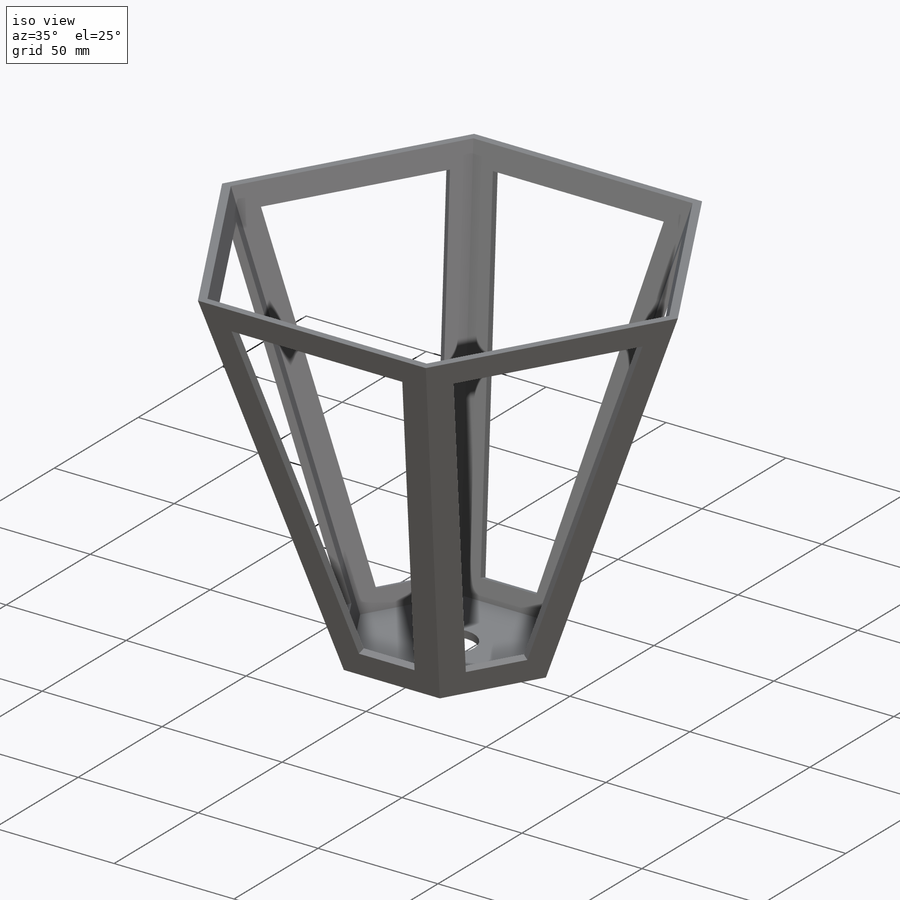
[diagram: iso view]
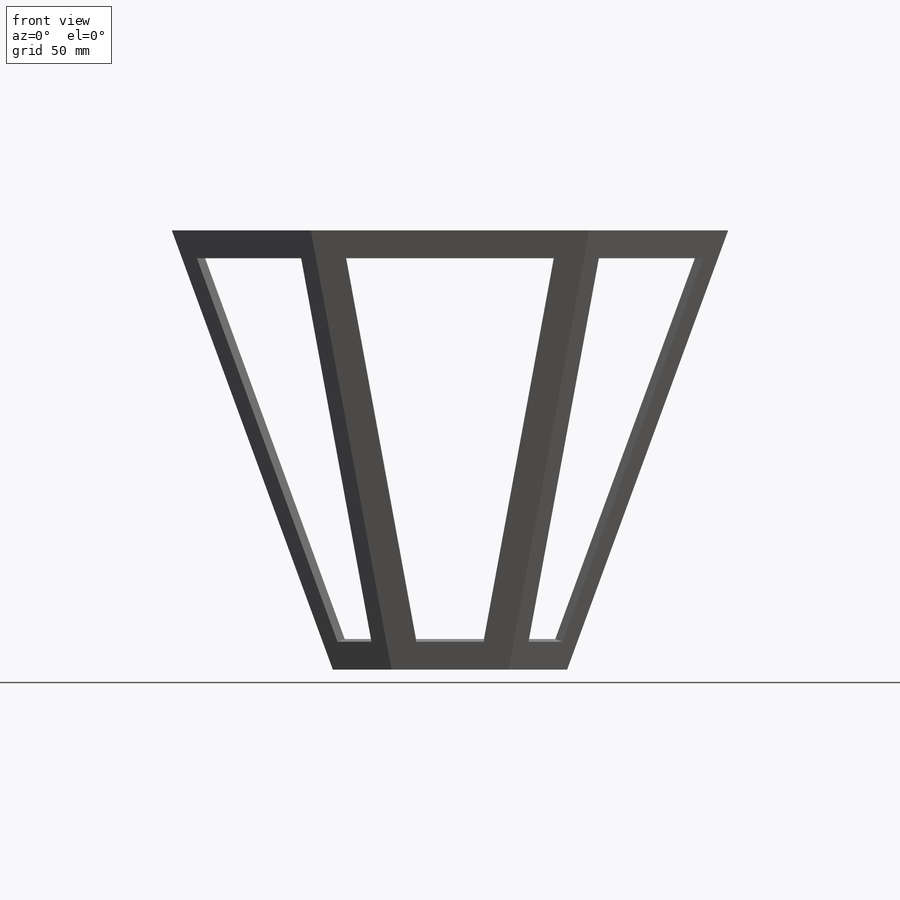
[diagram: front view]
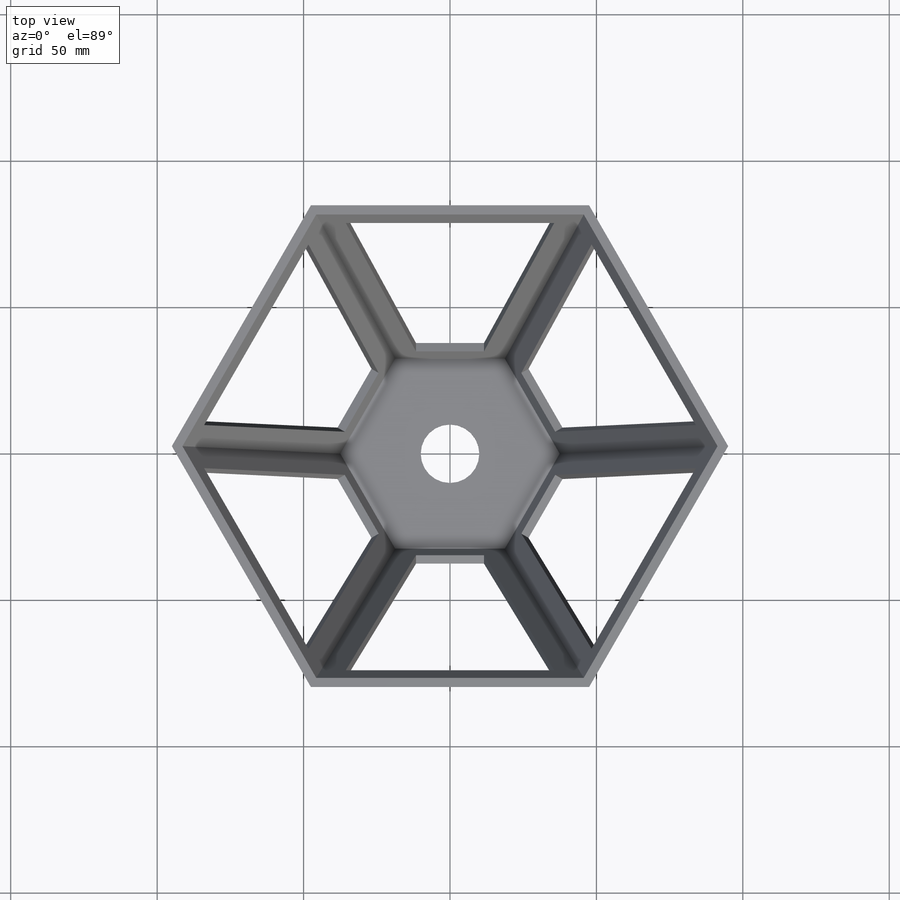
[diagram: top view]
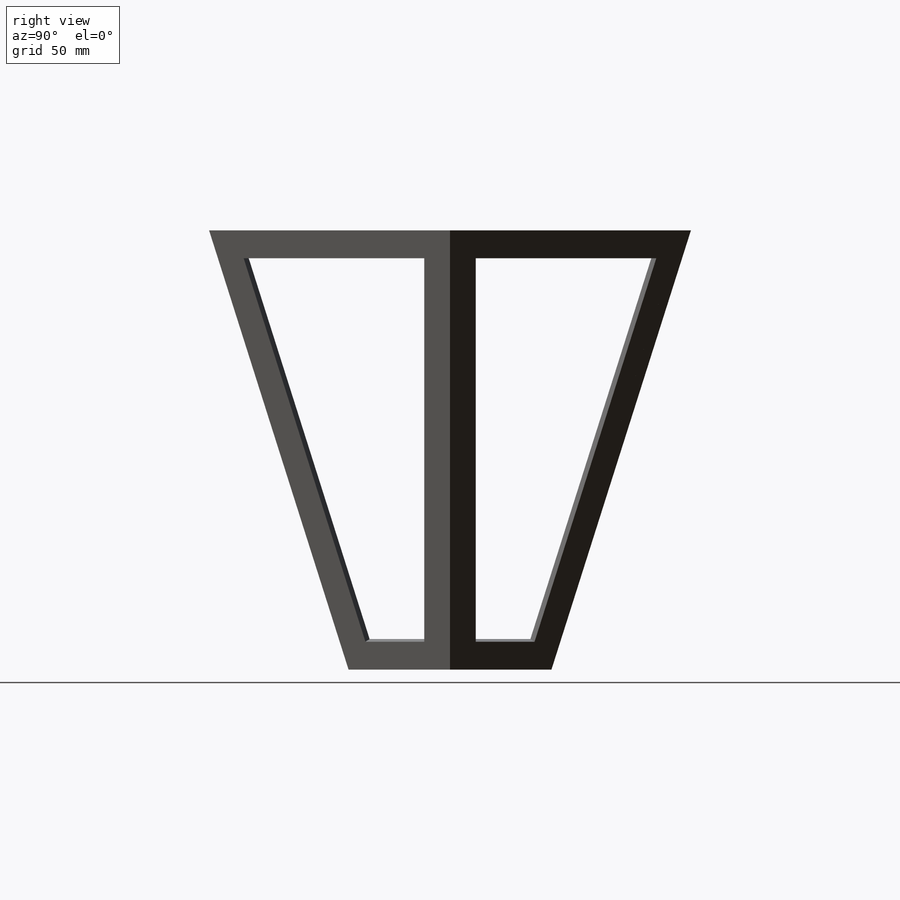
[diagram: right view]
SOLIDWORKS PART (.sldprt)
format: sldprt  version: not decoded by parser v0  size: 234,496 bytes
history: native  units: mm
features: sketch x4, cut_extrude x2, material x1, plane x1, shell x1, pattern_circular x1 (+16 scaffold rows collapsed)
feature tree (26):
  scaffold x16  (default folders/planes/origin — collapsed)
  material  "Material <sin especificar>"
  sketch  "Croquis1"  dims[D1=80.0mm]
  plane  "Plano1"  Offset=150mm
  sketch  "Croquis2"  dims[D1=190.0mm]
  shell  "Vaciado1"  Thickness=3mm
  sketch  "Croquis3"  dims[D1=10.0mm]
  cut_extrude  "Cortar-Extruir1"  [1 undecoded]
  sketch  "Croquis4"  dims[D1=20.0mm]
  cut_extrude  "Cortar-Extruir2"  [1 undecoded]
  pattern_circular  "MatrizC1"  Count=6 Angle=360deg
decode coverage: 6 of 8 modeling features carry decoded parameters
note: 2 parameter values undecoded
note: suppression state not decoded; provenance and decode notes live in map.json
